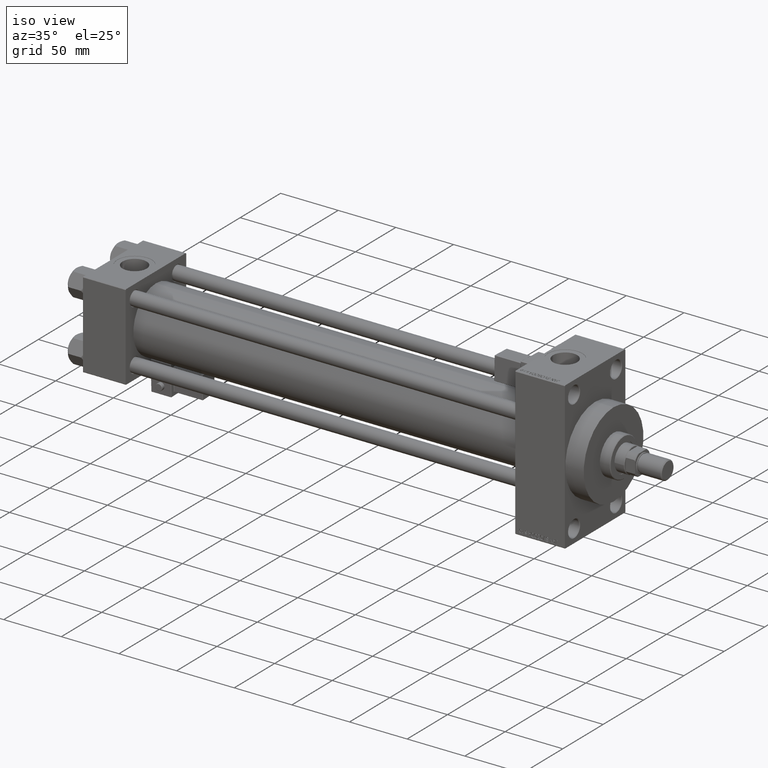
[diagram: clean part render]
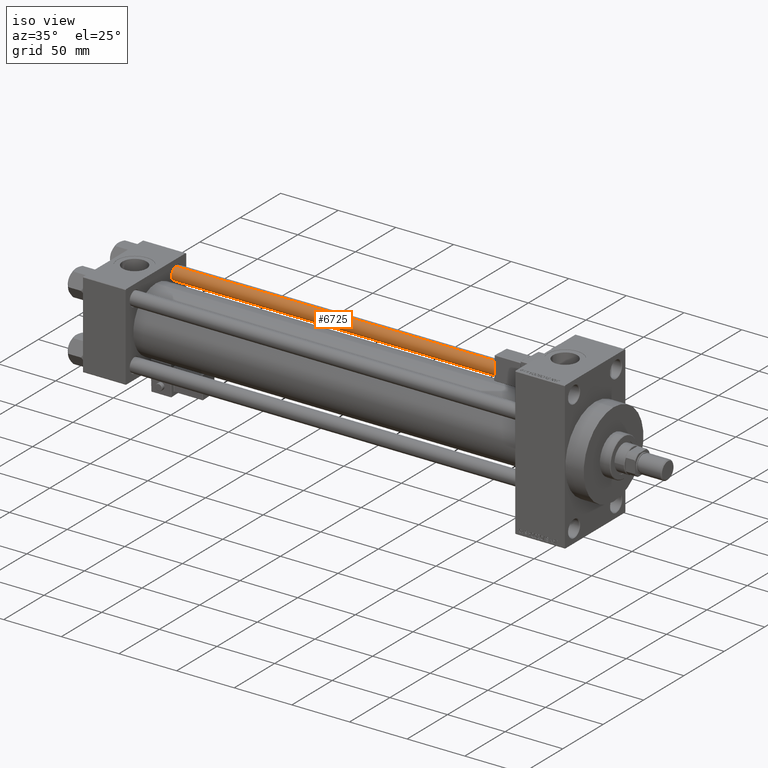
[diagram: same view with one face highlighted and labeled with its STEP entity id]
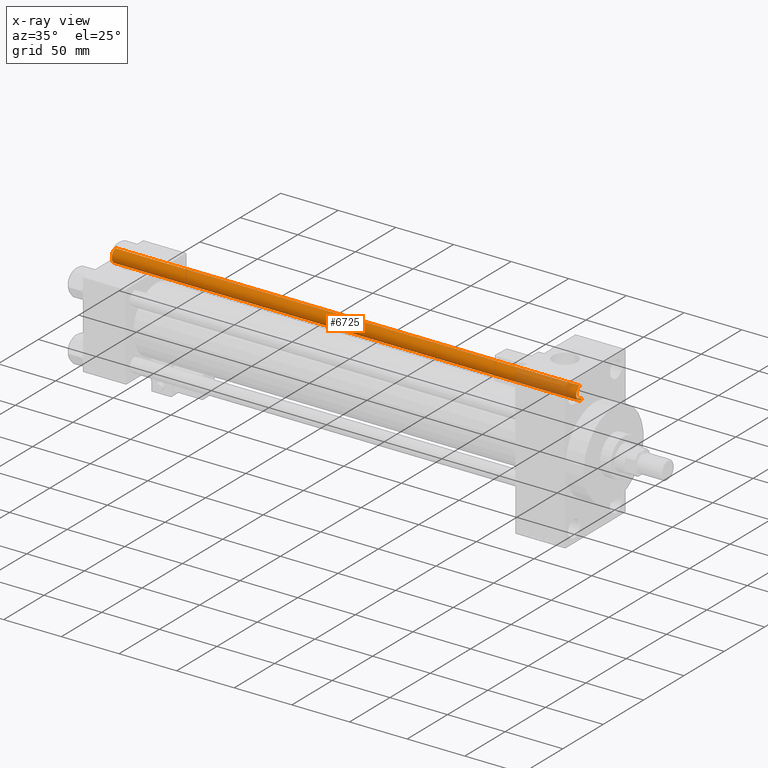
[diagram: x-ray of the same camera — body ghosted, the highlighted face saturated]
A machine part, iso view. The second image highlights one B-rep face of the part: STEP entity #6725.
The next image is the same camera in x-ray: the body ghosted, the highlighted face saturated — about 12% of this face is hidden behind the body in this view.
In plain terms, the highlighted cylindrical surface (edge-blend (fillet) strip) has radius 6 mm, axis along (-1, -0, 0).
Its self-contained STEP definition (entity closure, byte-faithful):
#663 = CARTESIAN_POINT ( 'NONE',  ( 6.000000000000000888, 7.347880794884120722E-16, 404.0000000000000000 ) ) ;
#962 = EDGE_CURVE ( 'NONE', #23714, #34391, #48502, .T. ) ;
#5230 = EDGE_CURVE ( 'NONE', #34391, #28680, #33123, .T. ) ;
#5241 = DIRECTION ( 'NONE',  ( 0.000000000000000000, 0.000000000000000000, -1.000000000000000000 ) ) ;
#6501 = CARTESIAN_POINT ( 'NONE',  ( -6.000000000000000888, 0.000000000000000000, 403.5000000000000000 ) ) ;
#6725 = ADVANCED_FACE ( 'NONE', ( #15061 ), #42930, .T. ) ;
#11043 = CARTESIAN_POINT ( 'NONE',  ( 6.000000000000000888, 7.347880794884120722E-16, 0.5000000000000559552 ) ) ;
#12731 = DIRECTION ( 'NONE',  ( -0.000000000000000000, -0.000000000000000000, -1.000000000000000000 ) ) ;
#13176 = DIRECTION ( 'NONE',  ( -0.000000000000000000, -0.000000000000000000, -1.000000000000000000 ) ) ;
#13294 = AXIS2_PLACEMENT_3D ( 'NONE', #20991, #5241, #36735 ) ;
#14221 = CARTESIAN_POINT ( 'NONE',  ( -6.000000000000000888, 0.000000000000000000, 0.5000000000000559552 ) ) ;
#14848 = VERTEX_POINT ( 'NONE', #11043 ) ;
#15061 = FACE_OUTER_BOUND ( 'NONE', #15564, .T. ) ;
#15320 = DIRECTION ( 'NONE',  ( -1.000000000000000000, 0.000000000000000000, 0.000000000000000000 ) ) ;
#15564 = EDGE_LOOP ( 'NONE', ( #45663, #44962, #30455, #37860 ) ) ;
#15839 = DIRECTION ( 'NONE',  ( -0.000000000000000000, -0.000000000000000000, -1.000000000000000000 ) ) ;
#15876 = LINE ( 'NONE', #663, #39768 ) ;
#20991 = CARTESIAN_POINT ( 'NONE',  ( 0.000000000000000000, 0.000000000000000000, 403.5000000000000000 ) ) ;
#23714 = VERTEX_POINT ( 'NONE', #51070 ) ;
#24344 = CARTESIAN_POINT ( 'NONE',  ( 0.000000000000000000, 0.000000000000000000, 0.5000000000000559552 ) ) ;
#26702 = CIRCLE ( 'NONE', #51071, 6.000000000000000888 ) ;
#27652 = CARTESIAN_POINT ( 'NONE',  ( 0.000000000000000000, 0.000000000000000000, 404.0000000000000000 ) ) ;
#27947 = EDGE_CURVE ( 'NONE', #23714, #14848, #15876, .T. ) ;
#28680 = VERTEX_POINT ( 'NONE', #14221 ) ;
#29274 = VECTOR ( 'NONE', #13176, 1000.000000000000000 ) ;
#30455 = ORIENTED_EDGE ( 'NONE', *, *, #5230, .T. ) ;
#33123 = LINE ( 'NONE', #49190, #29274 ) ;
#34391 = VERTEX_POINT ( 'NONE', #6501 ) ;
#35211 = EDGE_CURVE ( 'NONE', #28680, #14848, #26702, .T. ) ;
#36434 = DIRECTION ( 'NONE',  ( 1.000000000000000000, 0.000000000000000000, 0.000000000000000000 ) ) ;
#36735 = DIRECTION ( 'NONE',  ( 1.000000000000000000, 0.000000000000000000, 0.000000000000000000 ) ) ;
#37860 = ORIENTED_EDGE ( 'NONE', *, *, #35211, .T. ) ;
#38638 = AXIS2_PLACEMENT_3D ( 'NONE', #27652, #15839, #15320 ) ;
#39768 = VECTOR ( 'NONE', #12731, 1000.000000000000000 ) ;
#42930 = CYLINDRICAL_SURFACE ( 'NONE', #38638, 6.000000000000000888 ) ;
#44599 = DIRECTION ( 'NONE',  ( -0.000000000000000000, -0.000000000000000000, 1.000000000000000000 ) ) ;
#44962 = ORIENTED_EDGE ( 'NONE', *, *, #962, .T. ) ;
#45663 = ORIENTED_EDGE ( 'NONE', *, *, #27947, .F. ) ;
#48502 = CIRCLE ( 'NONE', #13294, 6.000000000000000888 ) ;
#49190 = CARTESIAN_POINT ( 'NONE',  ( -6.000000000000000888, 0.000000000000000000, 404.0000000000000000 ) ) ;
#51070 = CARTESIAN_POINT ( 'NONE',  ( 6.000000000000000888, 7.347880794884120722E-16, 403.5000000000000000 ) ) ;
#51071 = AXIS2_PLACEMENT_3D ( 'NONE', #24344, #44599, #36434 ) ;